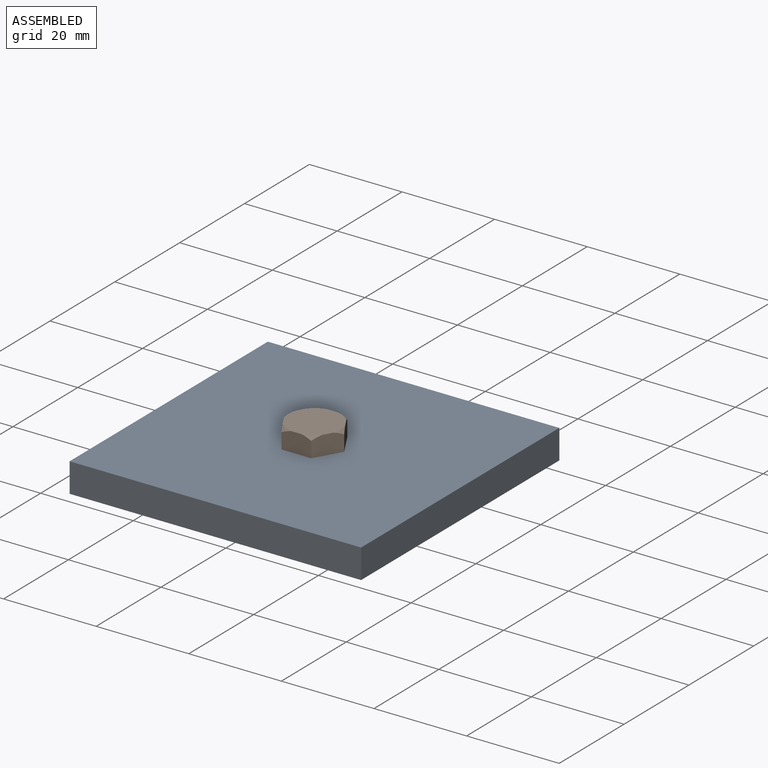
[diagram: assembled view]
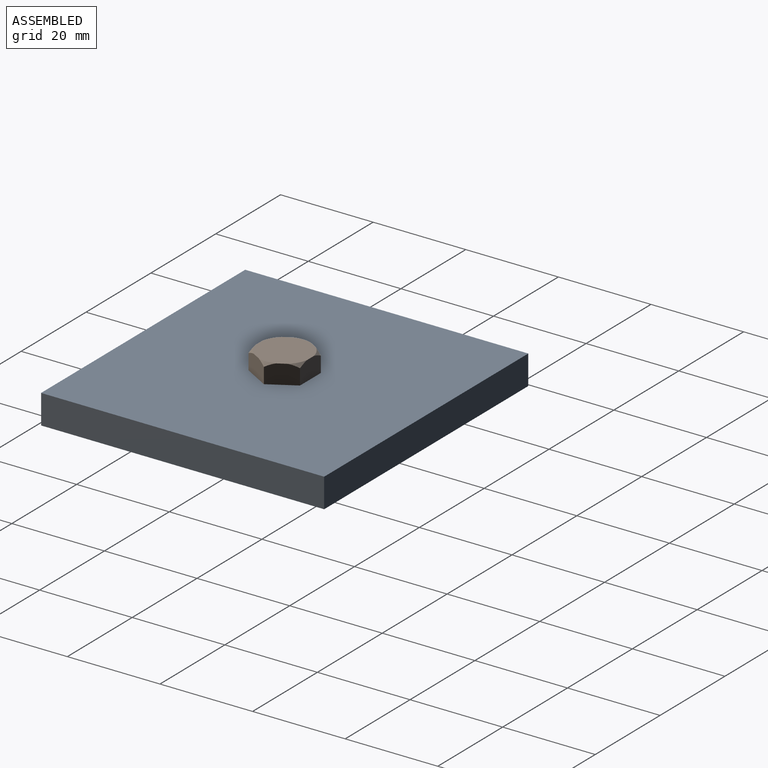
[diagram: assembled view, second angle]
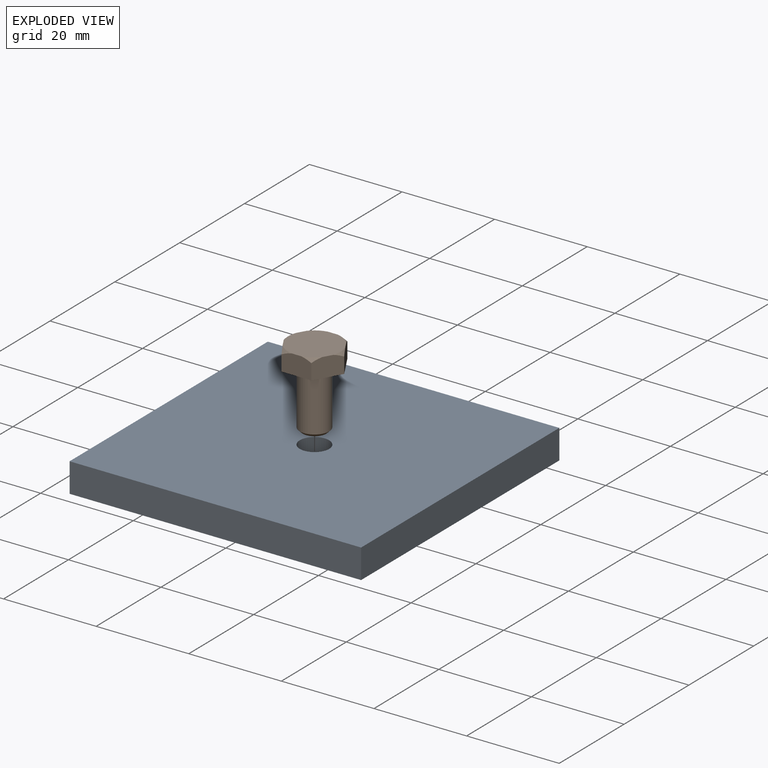
[diagram: exploded view]
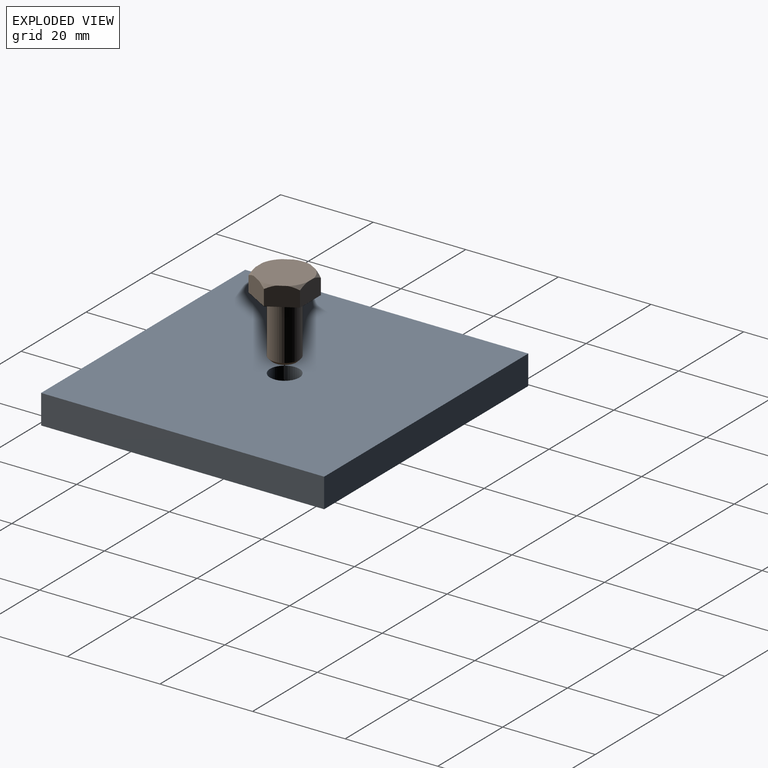
[diagram: exploded view, second angle]
ASSEMBLY  parts=2 mates=2
PART A: 7 faces, bbox 63x61.1x6.4 mm
  f0: plane 61.14x6.35mm, normal (1,0,0), area 388.2mm2, adj f1,f4,f5,f6
  f1: plane 62.96x6.35mm, normal (0,1,0), area 399.8mm2, adj f0,f2,f5,f6
  f2: plane 61.14x6.35mm, normal (-1,0,0), area 388.2mm2, adj f1,f4,f5,f6
  f3: cylinder r=3.17mm len=6.35mm, axis (0,0,1), area 126.7mm2, adj f5,f6
  f4: plane 62.96x6.35mm, normal (0,-1,0), area 399.8mm2, adj f0,f2,f5,f6
  f5: plane 62.96x61.14mm, normal (0,0,-1), area 3817.4mm2, adj f0,f1,f2,f3,f4
  f6: plane 62.96x61.14mm, normal (0,0,1), area 3817.4mm2, adj f0,f1,f2,f3,f4
PART B: 18 faces, bbox 12.9x12.6x16.8 mm
  f0: plane 5.08x5.08mm, normal (0,0,-1), area 20.3mm2, adj f17
  f1: cylinder r=3.17mm len=11.75mm, axis (0,0,-1), area 234.4mm2, adj f16,f17
  f2: plane 12.85x11.13mm, normal (0,0,-1), area 68.9mm2, adj f3,f4,f5,f6,f7,f8,f16
  f3: plane 5.57x4.14mm, normal (0.87,0.5,0), area 25.2mm2, adj f2,f4,f6,f9,f13,f15
  f4: plane 6.43x4.14mm, normal (0,1,0), area 25.2mm2, adj f2,f3,f5,f9,f14,f15
  f5: plane 5.57x4.14mm, normal (-0.87,0.5,0), area 25.2mm2, adj f2,f4,f7,f9,f12,f14
  f6: plane 5.57x4.14mm, normal (0.87,-0.5,0), area 25.2mm2, adj f2,f3,f8,f9,f11,f13
  f7: plane 5.57x4.14mm, normal (-0.87,-0.5,0), area 25.2mm2, adj f2,f5,f8,f9,f10,f12
  f8: plane 6.43x4.14mm, normal (0,-1,0), area 25.2mm2, adj f2,f6,f7,f9,f10,f11
  f9: plane 11.32x11.13mm, normal (0,0,1), area 99.9mm2, adj f3,f4,f5,f6,f7,f8,f10,f11
  f10: cone r=5.66mm half-angle=45deg, axis (0,0,-1), area 1.7mm2, adj f7,f8,f9
  f11: cone r=5.66mm half-angle=45deg, axis (0,0,-1), area 1.7mm2, adj f6,f8,f9
  f12: cone r=5.66mm half-angle=45deg, axis (0,0,-1), area 1.7mm2, adj f5,f7,f9
  f13: cone r=5.66mm half-angle=45deg, axis (0,0,-1), area 1.7mm2, adj f3,f6,f9
  f14: cone r=5.66mm half-angle=45deg, axis (0,0,-1), area 1.7mm2, adj f4,f5,f9
  f15: cone r=5.66mm half-angle=45deg, axis (0,0,-1), area 1.7mm2, adj f3,f4,f9
  f16: torus R=3.49mm, axis (0,0,1), area 10.3mm2, adj f1,f2
  f17: cone r=2.54mm half-angle=45deg, axis (0,0,1), area 16.1mm2, adj f0,f1
PLACE A t=(-15.11,20.35,8.1)mm
PLACE B t=(-15.11,20.35,-16.98)mm
MATE fastened A.f3 <-> B.f1  axis (0,0,1) through (-15.11,20.35,8.1)mm
MATE slider B.f1 <-> A.f3  axis (0,0,-1) through (-15.11,20.35,8.1)mm
